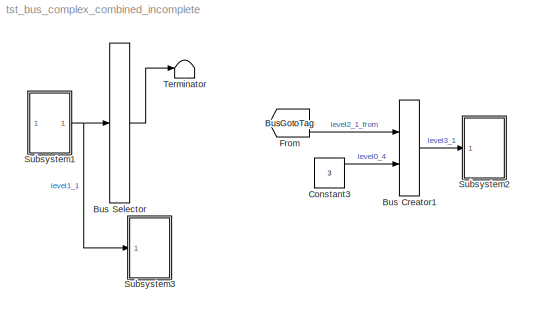
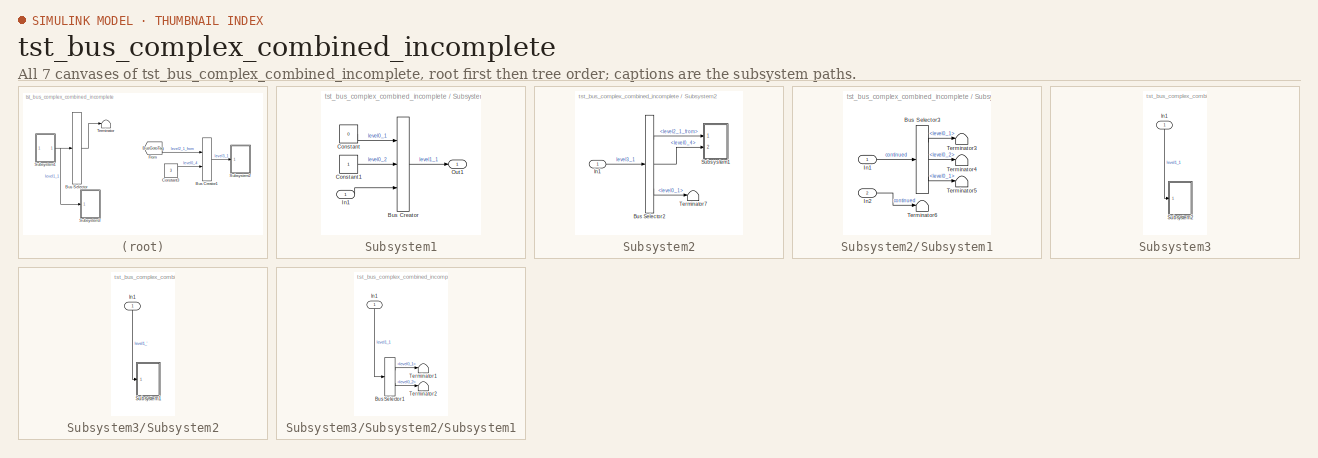
[diagram: thumbnail index - all 7 canvases of the model, root first then tree order]
MODEL tst_bus_complex_combined_incomplete
KIND model
BLOCK [BusCreator] Bus Creator1
  DisplayOption = bar
  Inputs = 2
  Ports = [2, 1]
  SID = 16
BLOCK [BusSelector] Bus Selector
  OutputAsBus = on
  OutputSignals = level0_1,level0_2
  Ports = [1, 1]
  SID = 2
BLOCK [Constant] Constant3
  SID = 23
  Value = 3
BLOCK [From] From
  GotoTag = BusGotoTag
  SID = 49
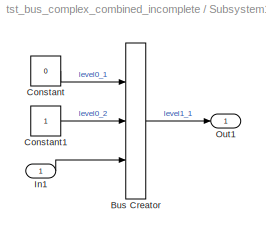
BLOCK [SubSystem] Subsystem1
  FunctionWithSeparateData = off
  MaskHideContents = off
  MinAlgLoopOccurrences = off
  Opaque = off
  Ports = [1, 1]
  PropExecContextOutsideSubsystem = off
  RTWSystemCode = Auto
  RequestExecContextInheritance = off
  SID = 34
BLOCK [BusCreator] Subsystem1/Bus Creator
  DisplayOption = bar
  Inputs = 3
  Ports = [3, 1]
  SID = 1
BLOCK [Constant] Subsystem1/Constant
  SID = 3
  Value = 0
BLOCK [Constant] Subsystem1/Constant1
  SID = 7
BLOCK [Inport] Subsystem1/In1
  IconDisplay = Port number
  SID = 35
BLOCK [Outport] Subsystem1/Out1
  IconDisplay = Port number
  SID = 36
BLOCK [SubSystem] Subsystem2
  FunctionWithSeparateData = off
  MaskHideContents = off
  MinAlgLoopOccurrences = off
  Opaque = off
  Ports = [1]
  PropExecContextOutsideSubsystem = off
  RTWSystemCode = Auto
  RequestExecContextInheritance = off
  SID = 43
BLOCK [BusSelector] Subsystem2/Bus Selector2
  OutputSignals = level2_1_from,level0_4,level2_1_from.level0_1
  Ports = [1, 3]
  SID = 24
BLOCK [Inport] Subsystem2/In1
  IconDisplay = Port number
  SID = 44
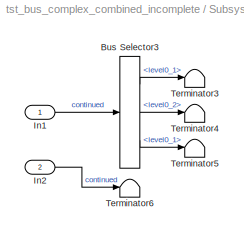
BLOCK [SubSystem] Subsystem2/Subsystem1
  FunctionWithSeparateData = off
  MaskHideContents = off
  MinAlgLoopOccurrences = off
  Opaque = off
  Ports = [2]
  PropExecContextOutsideSubsystem = off
  RTWSystemCode = Auto
  RequestExecContextInheritance = off
  SID = 45
BLOCK [BusSelector] Subsystem2/Subsystem1/Bus Selector3
  OutputSignals = level0_1,level0_2,level0_1
  Ports = [1, 3]
  SID = 25
BLOCK [Inport] Subsystem2/Subsystem1/In1
  IconDisplay = Port number
  SID = 46
BLOCK [Inport] Subsystem2/Subsystem1/In2
  IconDisplay = Port number
  Port = 2
  SID = 47
BLOCK [Terminator] Subsystem2/Subsystem1/Terminator3
  SID = 26
BLOCK [Terminator] Subsystem2/Subsystem1/Terminator4
  SID = 27
BLOCK [Terminator] Subsystem2/Subsystem1/Terminator5
  SID = 28
BLOCK [Terminator] Subsystem2/Subsystem1/Terminator6
  SID = 29
BLOCK [Terminator] Subsystem2/Terminator7
  SID = 30
BLOCK [SubSystem] Subsystem3
  FunctionWithSeparateData = off
  MaskHideContents = off
  MinAlgLoopOccurrences = off
  Opaque = off
  Ports = [1]
  PropExecContextOutsideSubsystem = off
  RTWSystemCode = Auto
  RequestExecContextInheritance = off
  SID = 41
BLOCK [Inport] Subsystem3/In1
  IconDisplay = Port number
  SID = 42
BLOCK [SubSystem] Subsystem3/Subsystem2
  FunctionWithSeparateData = off
  MaskHideContents = off
  MinAlgLoopOccurrences = off
  Opaque = off
  Ports = [1]
  PropExecContextOutsideSubsystem = off
  RTWSystemCode = Auto
  RequestExecContextInheritance = off
  SID = 39
BLOCK [Inport] Subsystem3/Subsystem2/In1
  IconDisplay = Port number
  SID = 40
BLOCK [SubSystem] Subsystem3/Subsystem2/Subsystem1
  FunctionWithSeparateData = off
  MaskHideContents = off
  MinAlgLoopOccurrences = off
  Opaque = off
  Ports = [1]
  PropExecContextOutsideSubsystem = off
  RTWSystemCode = Auto
  RequestExecContextInheritance = off
  SID = 37
BLOCK [BusSelector] Subsystem3/Subsystem2/Subsystem1/Bus Selector1
  OutputSignals = level0_1,level0_2
  Ports = [1, 2]
  SID = 12
BLOCK [Inport] Subsystem3/Subsystem2/Subsystem1/In1
  IconDisplay = Port number
  SID = 38
BLOCK [Terminator] Subsystem3/Subsystem2/Subsystem1/Terminator1
  SID = 13
BLOCK [Terminator] Subsystem3/Subsystem2/Subsystem1/Terminator2
  SID = 14
BLOCK [Terminator] Terminator
  SID = 5
LINE Bus Creator1:1 -> Subsystem2:1
LINE Bus Selector:1 -> Terminator:1
LINE Constant3:1 -> Bus Creator1:2
LINE From:1 -> Bus Creator1:1
LINE Subsystem1/Bus Creator:1 -> Subsystem1/Out1:1
LINE Subsystem1/Constant1:1 -> Subsystem1/Bus Creator:2
LINE Subsystem1/Constant:1 -> Subsystem1/Bus Creator:1
LINE Subsystem1/In1:1 -> Subsystem1/Bus Creator:3
NET Subsystem1:1 -> Bus Selector:1, Subsystem3:1
LINE Subsystem2/Bus Selector2:1 -> Subsystem2/Subsystem1:1
LINE Subsystem2/Bus Selector2:2 -> Subsystem2/Subsystem1:2
LINE Subsystem2/Bus Selector2:3 -> Subsystem2/Terminator7:1
LINE Subsystem2/In1:1 -> Subsystem2/Bus Selector2:1
LINE Subsystem2/Subsystem1/Bus Selector3:1 -> Subsystem2/Subsystem1/Terminator3:1
LINE Subsystem2/Subsystem1/Bus Selector3:2 -> Subsystem2/Subsystem1/Terminator4:1
LINE Subsystem2/Subsystem1/Bus Selector3:3 -> Subsystem2/Subsystem1/Terminator5:1
LINE Subsystem2/Subsystem1/In1:1 -> Subsystem2/Subsystem1/Bus Selector3:1
LINE Subsystem2/Subsystem1/In2:1 -> Subsystem2/Subsystem1/Terminator6:1
LINE Subsystem3/In1:1 -> Subsystem3/Subsystem2:1
LINE Subsystem3/Subsystem2/In1:1 -> Subsystem3/Subsystem2/Subsystem1:1
LINE Subsystem3/Subsystem2/Subsystem1/Bus Selector1:1 -> Subsystem3/Subsystem2/Subsystem1/Terminator1:1
LINE Subsystem3/Subsystem2/Subsystem1/Bus Selector1:2 -> Subsystem3/Subsystem2/Subsystem1/Terminator2:1
LINE Subsystem3/Subsystem2/Subsystem1/In1:1 -> Subsystem3/Subsystem2/Subsystem1/Bus Selector1:1
note: NET lines group one-source signal fan-out (src -> all destinations, sorted); 1:1 wires keep LINE
